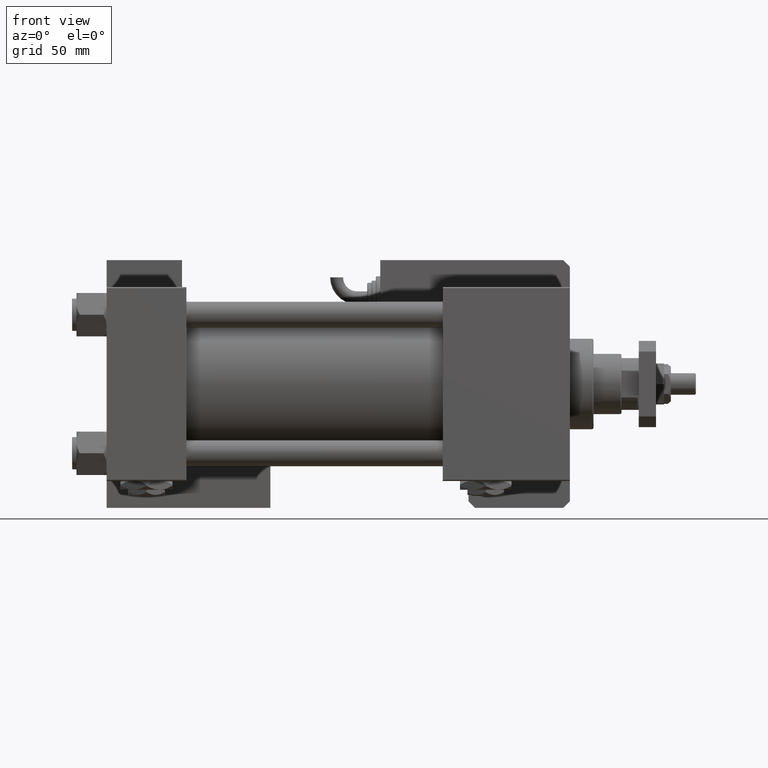
[diagram: clean part render]
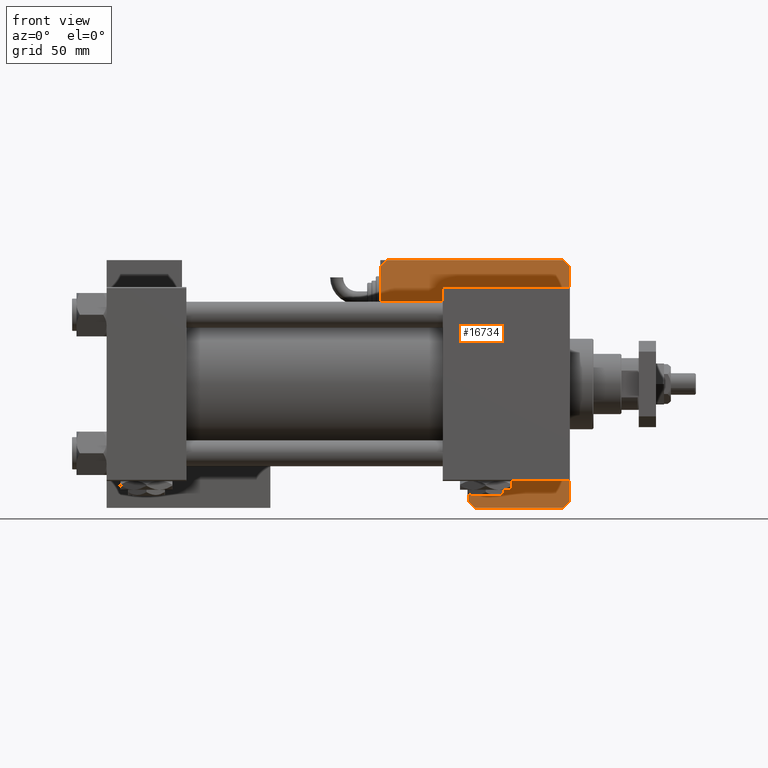
[diagram: same view with one face highlighted and labeled with its STEP entity id]
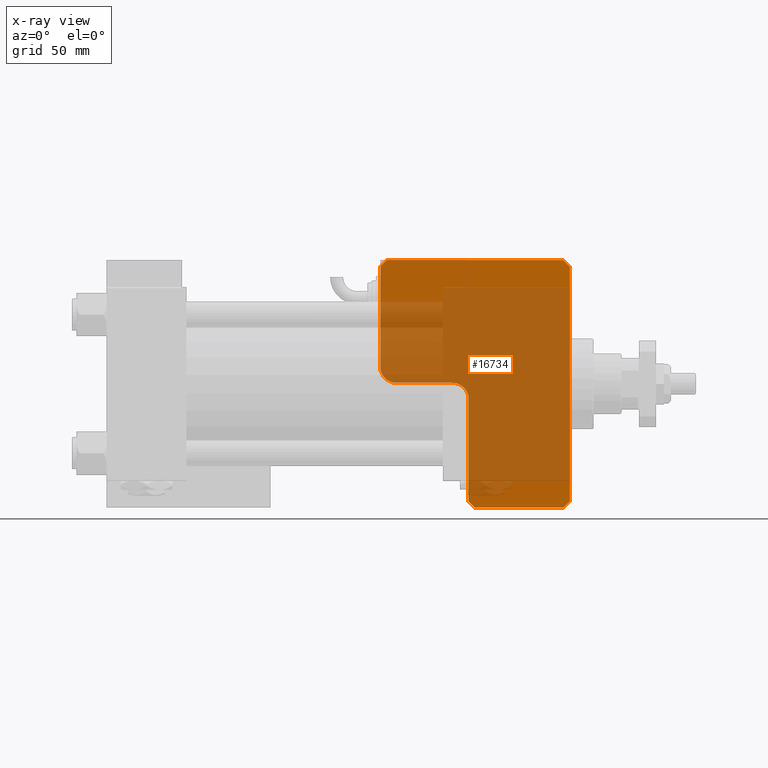
[diagram: x-ray of the same camera — body ghosted, the highlighted face saturated]
A machine part, front view. The second image highlights one B-rep face of the part: STEP entity #16734.
The next image is the same camera in x-ray: the body ghosted, the highlighted face saturated — about 78% of this face is hidden behind the body in this view.
In plain terms, the highlighted planar face has unit normal (0, 1, 0).
Its self-contained STEP definition (entity closure, byte-faithful):
#127 = VECTOR ( 'NONE', #19891, 1000.000000000000114 ) ;
#231 = CARTESIAN_POINT ( 'NONE',  ( 114.9999999999999858, 46.99999999999998579, 0.000000000000000000 ) ) ;
#721 = CARTESIAN_POINT ( 'NONE',  ( 112.0000000000000142, 46.99999999999998579, 0.000000000000000000 ) ) ;
#1335 = CARTESIAN_POINT ( 'NONE',  ( 0.000000000000000000, 0.000000000000000000, 0.000000000000000000 ) ) ;
#2941 = AXIS2_PLACEMENT_3D ( 'NONE', #29578, #43649, #34259 ) ;
#4359 = LINE ( 'NONE', #231, #36262 ) ;
#4447 = CARTESIAN_POINT ( 'NONE',  ( 0.000000000000000000, 0.000000000000000000, 0.000000000000000000 ) ) ;
#5154 = AXIS2_PLACEMENT_3D ( 'NONE', #1335, #18629, #37098 ) ;
#5883 = CARTESIAN_POINT ( 'NONE',  ( 3.000000000000002665, 88.00000000000000000, 0.000000000000000000 ) ) ;
#6428 = LINE ( 'NONE', #6709, #127 ) ;
#6563 = ORIENTED_EDGE ( 'NONE', *, *, #12529, .T. ) ;
#6709 = CARTESIAN_POINT ( 'NONE',  ( 2.999999999999975131, 0.000000000000000000, 0.000000000000000000 ) ) ;
#8104 = EDGE_CURVE ( 'NONE', #11557, #16398, #51888, .T. ) ;
#8120 = CARTESIAN_POINT ( 'NONE',  ( 0.000000000000000000, 3.000000000000002665, 0.000000000000000000 ) ) ;
#8998 = CARTESIAN_POINT ( 'NONE',  ( 56.99999999999999289, 46.99999999999998579, 0.000000000000000000 ) ) ;
#9134 = CARTESIAN_POINT ( 'NONE',  ( 2.999999999999975131, 0.000000000000000000, 0.000000000000000000 ) ) ;
#9213 = CARTESIAN_POINT ( 'NONE',  ( 49.49999999999999289, 88.00000000000000000, 0.000000000000000000 ) ) ;
#9385 = DIRECTION ( 'NONE',  ( 0.000000000000000000, -1.000000000000000000, 0.000000000000000000 ) ) ;
#11557 = VERTEX_POINT ( 'NONE', #21244 ) ;
#11573 = CARTESIAN_POINT ( 'NONE',  ( 114.9999999999999858, 0.000000000000000000, 0.000000000000000000 ) ) ;
#11711 = CARTESIAN_POINT ( 'NONE',  ( 0.000000000000000000, 85.00000000000001421, 0.000000000000000000 ) ) ;
#12278 = EDGE_CURVE ( 'NONE', #34590, #43229, #51507, .T. ) ;
#12529 = EDGE_CURVE ( 'NONE', #43920, #22144, #55548, .T. ) ;
#12817 = ORIENTED_EDGE ( 'NONE', *, *, #12278, .T. ) ;
#15128 = EDGE_CURVE ( 'NONE', #32315, #43229, #53432, .T. ) ;
#15700 = ORIENTED_EDGE ( 'NONE', *, *, #8104, .T. ) ;
#16398 = VERTEX_POINT ( 'NONE', #5883 ) ;
#16734 = ADVANCED_FACE ( 'NONE', ( #24460 ), #45636, .F. ) ;
#17002 = ORIENTED_EDGE ( 'NONE', *, *, #43397, .T. ) ;
#17677 = ORIENTED_EDGE ( 'NONE', *, *, #37573, .F. ) ;
#17843 = DIRECTION ( 'NONE',  ( -1.000000000000000000, 0.000000000000000000, 0.000000000000000000 ) ) ;
#17928 = DIRECTION ( 'NONE',  ( 1.000000000000000000, 0.000000000000000000, 0.000000000000000000 ) ) ;
#18153 = VECTOR ( 'NONE', #50373, 1000.000000000000114 ) ;
#18269 = CIRCLE ( 'NONE', #22946, 7.500000000000007105 ) ;
#18588 = VERTEX_POINT ( 'NONE', #8120 ) ;
#18629 = DIRECTION ( 'NONE',  ( 0.000000000000000000, -0.000000000000000000, 1.000000000000000000 ) ) ;
#19483 = ORIENTED_EDGE ( 'NONE', *, *, #54046, .T. ) ;
#19891 = DIRECTION ( 'NONE',  ( -0.7071067811865441310, 0.7071067811865507924, 0.000000000000000000 ) ) ;
#19994 = ORIENTED_EDGE ( 'NONE', *, *, #15128, .F. ) ;
#21244 = CARTESIAN_POINT ( 'NONE',  ( 0.000000000000000000, 85.00000000000001421, 0.000000000000000000 ) ) ;
#21350 = LINE ( 'NONE', #56575, #39071 ) ;
#22144 = VERTEX_POINT ( 'NONE', #52916 ) ;
#22946 = AXIS2_PLACEMENT_3D ( 'NONE', #23798, #54313, #41708 ) ;
#23424 = ORIENTED_EDGE ( 'NONE', *, *, #43285, .T. ) ;
#23798 = CARTESIAN_POINT ( 'NONE',  ( 64.50000000000000000, 54.49999999999998579, 0.000000000000000000 ) ) ;
#24460 = FACE_OUTER_BOUND ( 'NONE', #28576, .T. ) ;
#25781 = EDGE_CURVE ( 'NONE', #29072, #16398, #21350, .T. ) ;
#26042 = EDGE_CURVE ( 'NONE', #43920, #36530, #4359, .T. ) ;
#26369 = ORIENTED_EDGE ( 'NONE', *, *, #51537, .F. ) ;
#26874 = DIRECTION ( 'NONE',  ( 0.000000000000000000, 1.000000000000000000, 0.000000000000000000 ) ) ;
#28576 = EDGE_LOOP ( 'NONE', ( #38358, #15700, #46105, #17002, #26369, #19483, #39389, #6563, #17677, #12817, #19994, #23424 ) ) ;
#28915 = CARTESIAN_POINT ( 'NONE',  ( 114.9999999999999858, 2.999999999999975131, 0.000000000000000000 ) ) ;
#29072 = VERTEX_POINT ( 'NONE', #9213 ) ;
#29458 = DIRECTION ( 'NONE',  ( 0.000000000000000000, 1.000000000000000000, 0.000000000000000000 ) ) ;
#29578 = CARTESIAN_POINT ( 'NONE',  ( 49.49999999999999289, 80.49999999999998579, 0.000000000000000000 ) ) ;
#32315 = VERTEX_POINT ( 'NONE', #9134 ) ;
#32955 = CARTESIAN_POINT ( 'NONE',  ( 112.0000000000000142, 46.99999999999998579, 0.000000000000000000 ) ) ;
#33871 = CIRCLE ( 'NONE', #2941, 7.500000000000000000 ) ;
#34259 = DIRECTION ( 'NONE',  ( 1.000000000000000000, 5.551115123125782702E-15, 0.000000000000000000 ) ) ;
#34590 = VERTEX_POINT ( 'NONE', #42668 ) ;
#35752 = CARTESIAN_POINT ( 'NONE',  ( 111.9999999999999858, 0.000000000000000000, 0.000000000000000000 ) ) ;
#36262 = VECTOR ( 'NONE', #17843, 1000.000000000000000 ) ;
#36530 = VERTEX_POINT ( 'NONE', #52975 ) ;
#37098 = DIRECTION ( 'NONE',  ( 1.000000000000000000, 0.000000000000000000, -0.000000000000000000 ) ) ;
#37573 = EDGE_CURVE ( 'NONE', #34590, #22144, #51742, .T. ) ;
#38358 = ORIENTED_EDGE ( 'NONE', *, *, #43210, .F. ) ;
#39071 = VECTOR ( 'NONE', #48369, 1000.000000000000000 ) ;
#39389 = ORIENTED_EDGE ( 'NONE', *, *, #26042, .F. ) ;
#41708 = DIRECTION ( 'NONE',  ( 1.000000000000000000, 0.000000000000000000, 0.000000000000000000 ) ) ;
#42668 = CARTESIAN_POINT ( 'NONE',  ( 114.9999999999999858, 2.999999999999975131, 0.000000000000000000 ) ) ;
#42739 = VERTEX_POINT ( 'NONE', #48768 ) ;
#43210 = EDGE_CURVE ( 'NONE', #11557, #18588, #48695, .T. ) ;
#43229 = VERTEX_POINT ( 'NONE', #35752 ) ;
#43285 = EDGE_CURVE ( 'NONE', #32315, #18588, #6428, .T. ) ;
#43377 = DIRECTION ( 'NONE',  ( 0.7071067811865507924, 0.7071067811865441310, -0.000000000000000000 ) ) ;
#43397 = EDGE_CURVE ( 'NONE', #29072, #42739, #33871, .T. ) ;
#43456 = VECTOR ( 'NONE', #17928, 1000.000000000000000 ) ;
#43554 = VECTOR ( 'NONE', #43377, 1000.000000000000114 ) ;
#43649 = DIRECTION ( 'NONE',  ( -0.000000000000000000, 0.000000000000000000, -1.000000000000000000 ) ) ;
#43920 = VERTEX_POINT ( 'NONE', #721 ) ;
#44185 = LINE ( 'NONE', #8998, #46249 ) ;
#44186 = VECTOR ( 'NONE', #9385, 1000.000000000000000 ) ;
#45636 = PLANE ( 'NONE',  #5154 ) ;
#46105 = ORIENTED_EDGE ( 'NONE', *, *, #25781, .F. ) ;
#46249 = VECTOR ( 'NONE', #26874, 1000.000000000000000 ) ;
#48143 = VECTOR ( 'NONE', #54691, 1000.000000000000114 ) ;
#48369 = DIRECTION ( 'NONE',  ( -1.000000000000000000, 0.000000000000000000, 0.000000000000000000 ) ) ;
#48695 = LINE ( 'NONE', #49570, #44186 ) ;
#48768 = CARTESIAN_POINT ( 'NONE',  ( 56.99999999999999289, 80.49999999999997158, 0.000000000000000000 ) ) ;
#49084 = VERTEX_POINT ( 'NONE', #49697 ) ;
#49570 = CARTESIAN_POINT ( 'NONE',  ( 0.000000000000000000, 88.00000000000000000, 0.000000000000000000 ) ) ;
#49697 = CARTESIAN_POINT ( 'NONE',  ( 56.99999999999999289, 54.49999999999998579, 0.000000000000000000 ) ) ;
#50373 = DIRECTION ( 'NONE',  ( -0.7071067811865507924, -0.7071067811865441310, -0.000000000000000000 ) ) ;
#51507 = LINE ( 'NONE', #28915, #18153 ) ;
#51537 = EDGE_CURVE ( 'NONE', #49084, #42739, #44185, .T. ) ;
#51742 = LINE ( 'NONE', #11573, #52351 ) ;
#51888 = LINE ( 'NONE', #11711, #43554 ) ;
#52351 = VECTOR ( 'NONE', #29458, 1000.000000000000000 ) ;
#52916 = CARTESIAN_POINT ( 'NONE',  ( 114.9999999999999858, 43.99999999999998579, 0.000000000000000000 ) ) ;
#52975 = CARTESIAN_POINT ( 'NONE',  ( 64.50000000000000000, 46.99999999999998579, 0.000000000000000000 ) ) ;
#53432 = LINE ( 'NONE', #4447, #43456 ) ;
#54046 = EDGE_CURVE ( 'NONE', #49084, #36530, #18269, .T. ) ;
#54313 = DIRECTION ( 'NONE',  ( 0.000000000000000000, -0.000000000000000000, 1.000000000000000000 ) ) ;
#54691 = DIRECTION ( 'NONE',  ( 0.7071067811865441310, -0.7071067811865507924, -0.000000000000000000 ) ) ;
#55548 = LINE ( 'NONE', #32955, #48143 ) ;
#56575 = CARTESIAN_POINT ( 'NONE',  ( 56.99999999999999289, 88.00000000000000000, 0.000000000000000000 ) ) ;